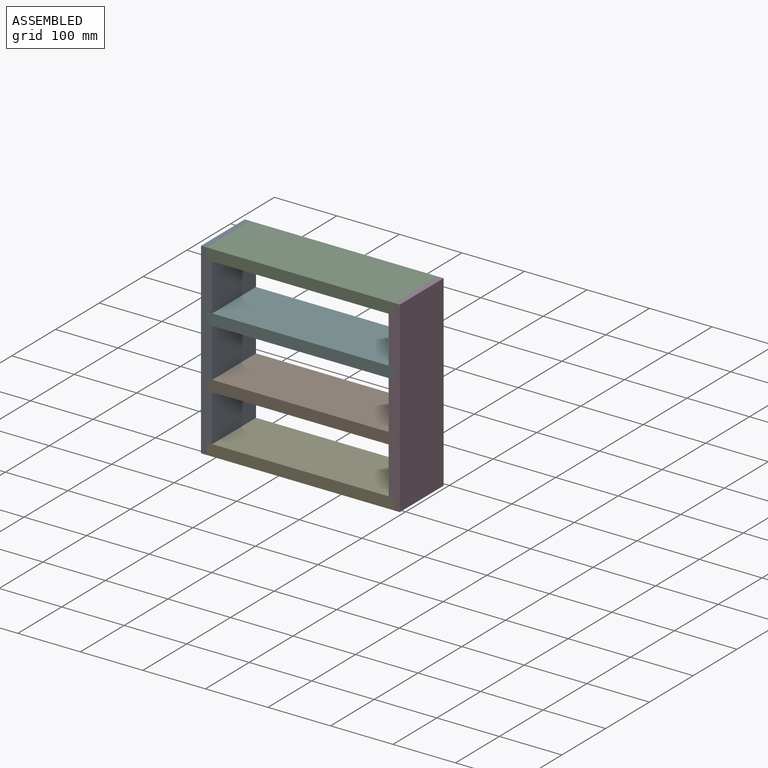
[diagram: assembled view]
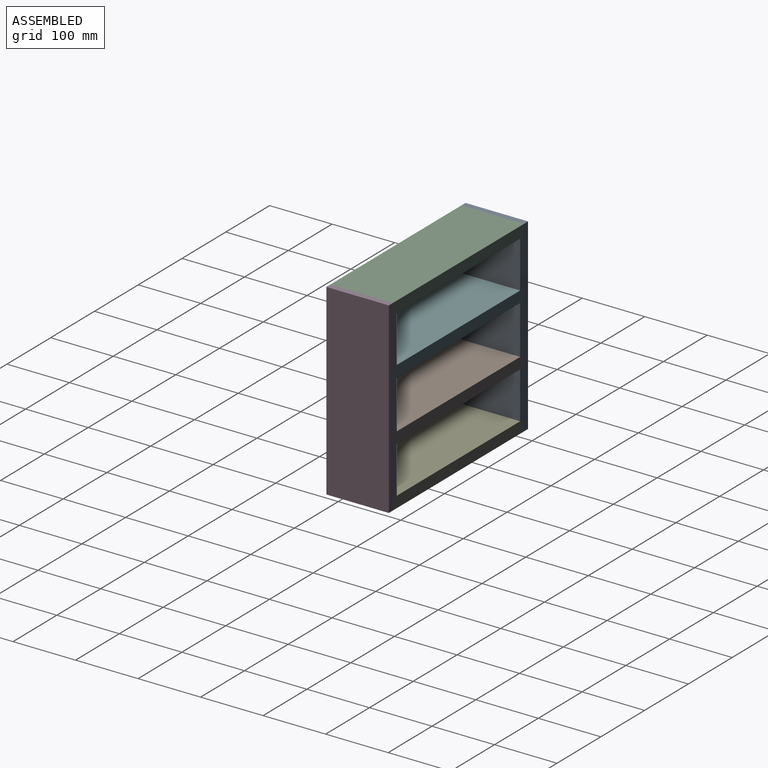
[diagram: assembled view, second angle]
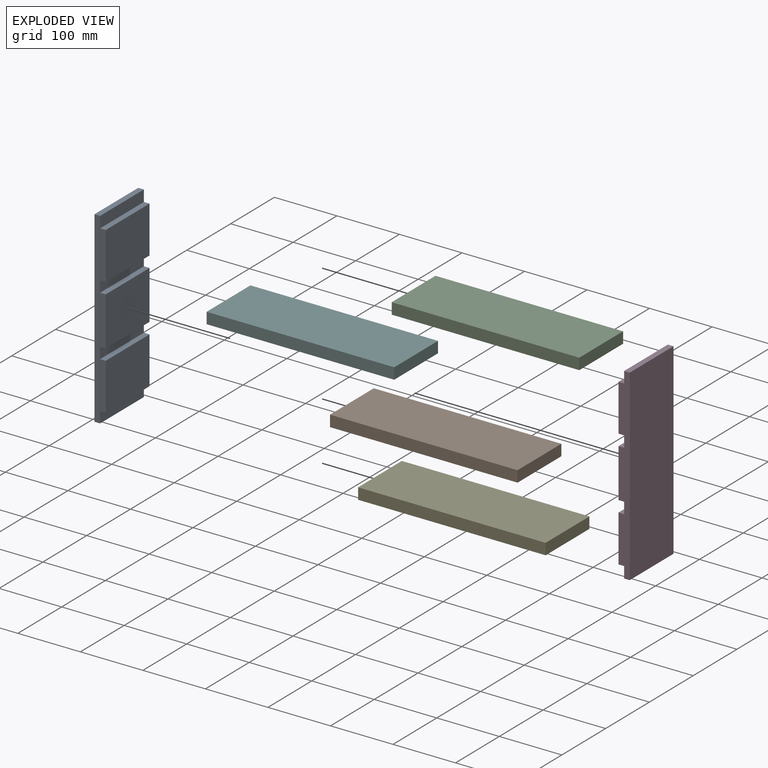
[diagram: exploded view]
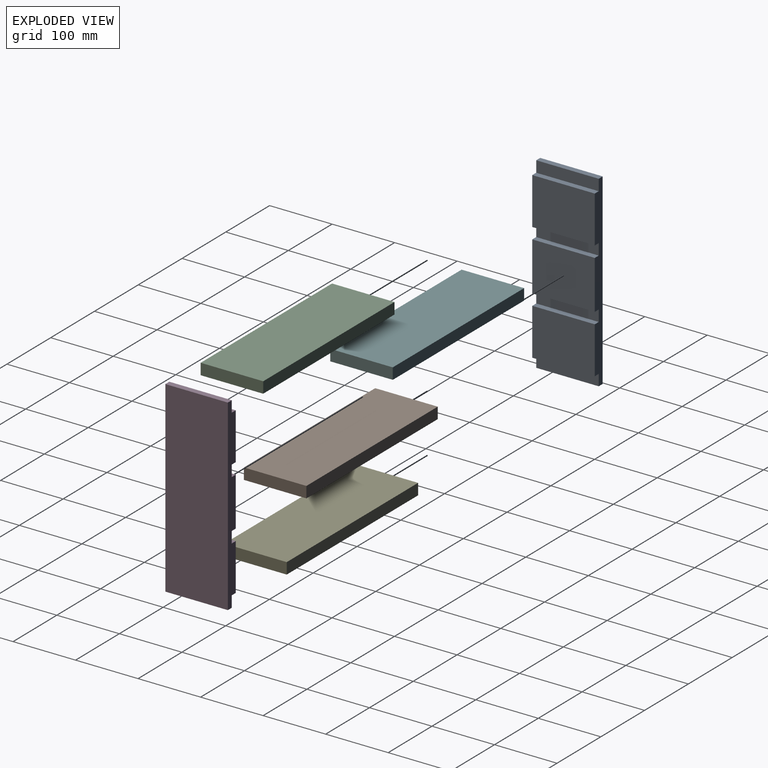
[diagram: exploded view, second angle]
ASSEMBLY  parts=6 mates=5
PART A: 18 faces, bbox 300x100x18 mm
  f0: plane 100x9mm, normal (-1,0,0), area 900mm2, adj f5,f6,f7,f17
  f1: plane 100x9mm, normal (1,0,0), area 900mm2, adj f5,f6,f7,f15
  f2: plane 100x75mm, normal (0,0,1), area 7500mm2, adj f5,f6,f11,f16
  f3: plane 100x78mm, normal (0,0,1), area 7800mm2, adj f5,f6,f8,f12
  f4: plane 100x75mm, normal (0,0,1), area 7500mm2, adj f5,f6,f9,f14
  f5: plane 300x18mm, normal (0,1,0), area 4752mm2, adj f0,f1,f2,f3,f4,f7,f8,f9
  f6: plane 300x18mm, normal (0,-1,0), area 4752mm2, adj f0,f1,f2,f3,f4,f7,f8,f9
  f7: plane 300x100mm, normal (0,0,-1), area 30000mm2, adj f0,f1,f5,f6
  f8: plane 100x9mm, normal (1,0,0), area 900mm2, adj f3,f5,f6,f10
  f9: plane 100x9mm, normal (-1,0,0), area 900mm2, adj f4,f5,f6,f10
  f10: plane 100x18mm, normal (0,0,1), area 1800mm2, adj f5,f6,f8,f9
  f11: plane 100x9mm, normal (1,0,0), area 900mm2, adj f2,f5,f6,f13
  f12: plane 100x9mm, normal (-1,0,0), area 900mm2, adj f3,f5,f6,f13
  f13: plane 100x18mm, normal (0,0,1), area 1800mm2, adj f5,f6,f11,f12
  f14: plane 100x9mm, normal (1,0,0), area 900mm2, adj f4,f5,f6,f15
  f15: plane 100x18mm, normal (0,0,1), area 1800mm2, adj f1,f5,f6,f14
  f16: plane 100x9mm, normal (-1,0,0), area 900mm2, adj f2,f5,f6,f17
  f17: plane 100x18mm, normal (0,0,1), area 1800mm2, adj f0,f5,f6,f16
PART B: 6 faces, bbox 300x100x18 mm
  f0: plane 300x18mm, normal (0,1,0), area 5400mm2, adj f1,f3,f4,f5
  f1: plane 100x18mm, normal (-1,0,0), area 1800mm2, adj f0,f2,f4,f5
  f2: plane 300x18mm, normal (0,-1,0), area 5400mm2, adj f1,f3,f4,f5
  f3: plane 100x18mm, normal (1,0,0), area 1800mm2, adj f0,f2,f4,f5
  f4: plane 300x100mm, normal (0,0,1), area 30000mm2, adj f0,f1,f2,f3
  f5: plane 300x100mm, normal (0,0,-1), area 30000mm2, adj f0,f1,f2,f3
PART C: same geometry as B
PART D: same geometry as A
PART E: same geometry as B
PART F: same geometry as B
PLACE A rot(axis=(0,1,0),90deg) t=(-315.2,-269.21,-253.88)mm
PLACE B t=(-158.65,-269.21,-313.33)mm
PLACE C t=(-158.65,-269.21,-124.33)mm
PLACE D rot(axis=(0.71,0,-0.71),180deg) t=(2.8,-64.92,-253.88)mm
PLACE E rot(axis=(1,0,0),180deg) t=(-158.65,-64.92,-388.33)mm
PLACE F rot(axis=(0,0,1),180deg) t=(-153.75,-64.92,-217.33)mm
MATE fastened A.f13 <-> F.f3  axis (1,0,0) through (-306.2,-167.07,-208.33)mm
MATE fastened D.f10 <-> B.f3  axis (-1,0,0) through (-6.2,-167.07,-304.33)mm
MATE fastened E.f3 <-> D.f15  axis (1,0,0) through (-6.2,-167.07,-406.33)mm
MATE fastened A.f17 <-> C.f1  axis (1,0,0) through (-306.2,-167.07,-115.33)mm
MATE fastened A.f15 <-> E.f1  axis (1,0,0) through (-306.2,-167.07,-397.33)mm
